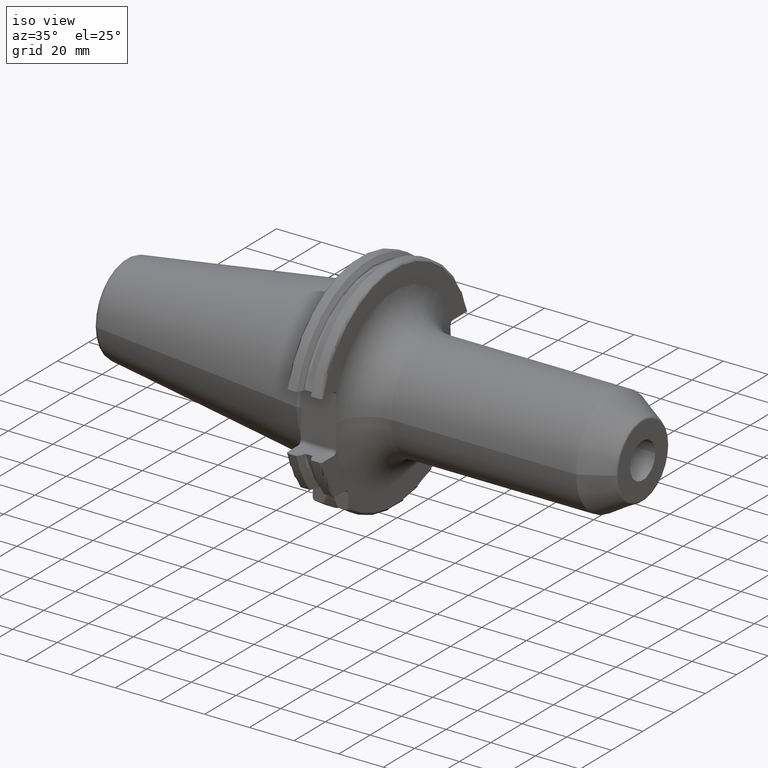
[diagram: clean part render]
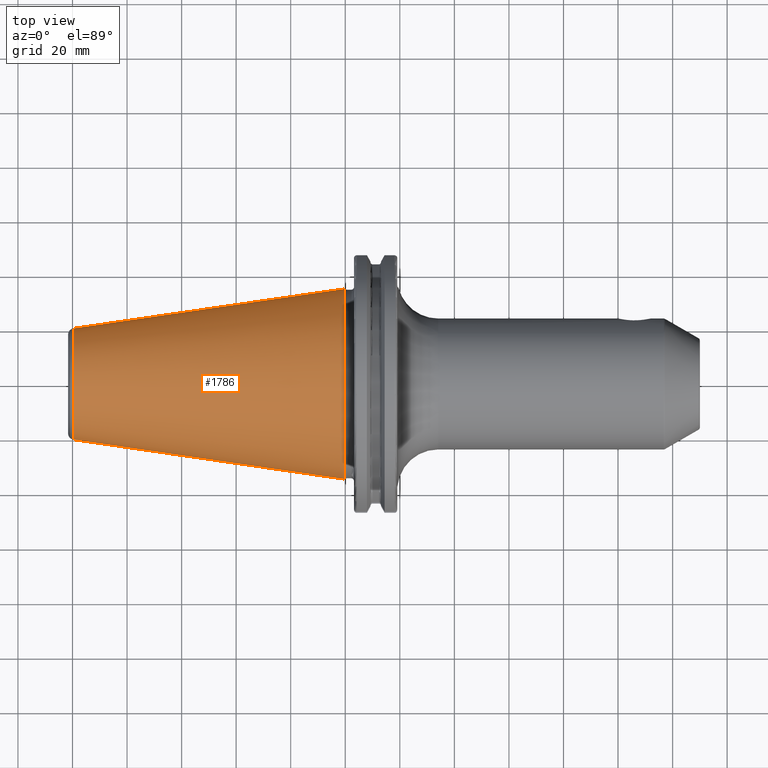
[diagram: tour spotlight — one face highlighted and labeled with its STEP entity id]
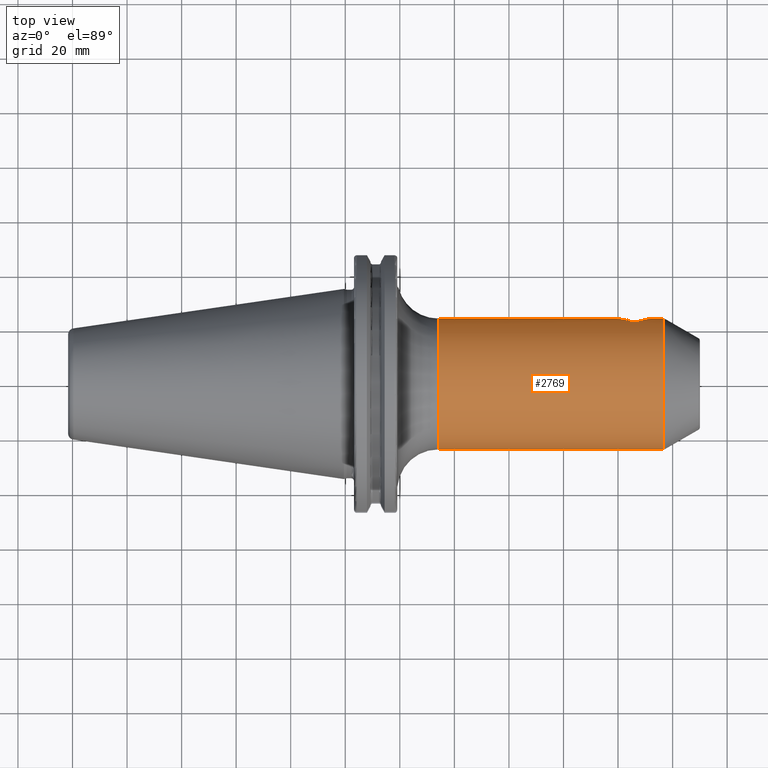
[diagram: tour spotlight — one face highlighted and labeled with its STEP entity id]
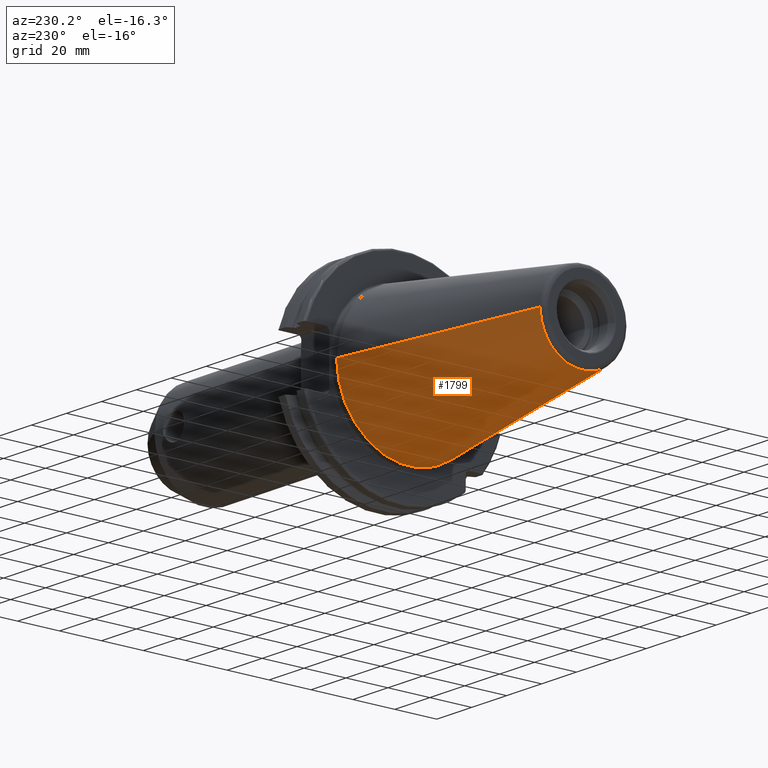
[diagram: tour spotlight — one face highlighted and labeled with its STEP entity id]
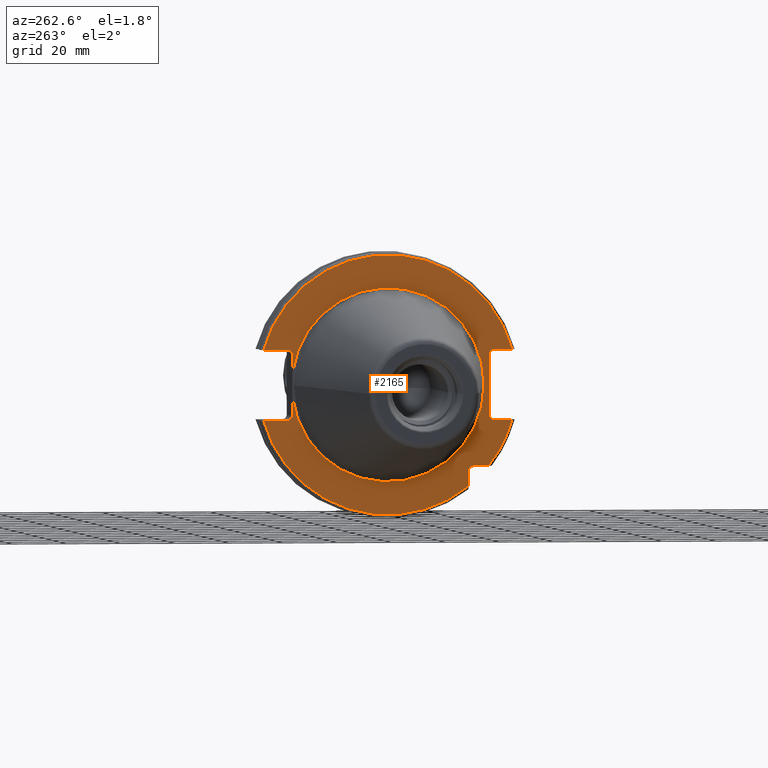
[diagram: tour spotlight — one face highlighted and labeled with its STEP entity id]
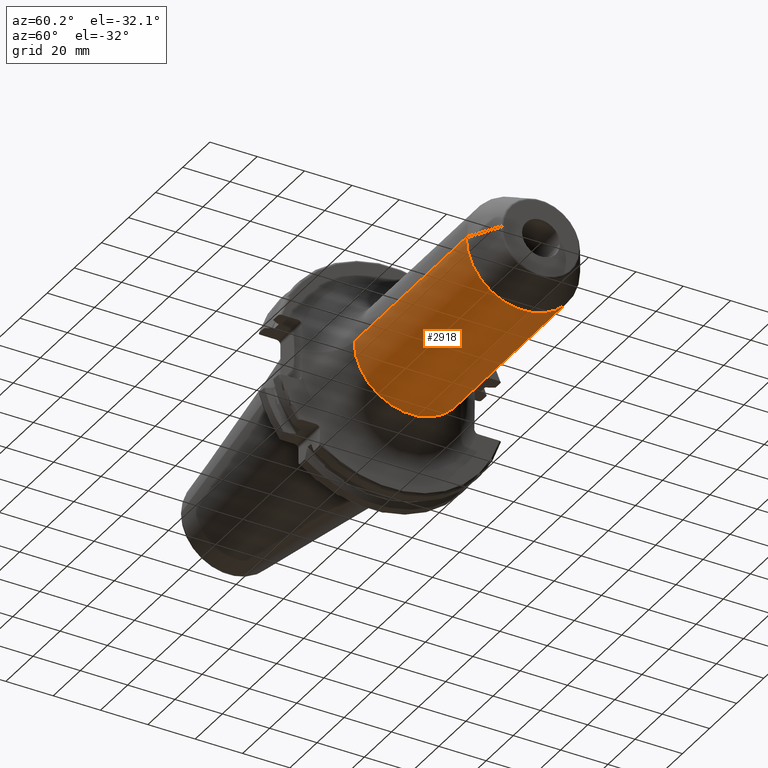
[diagram: tour spotlight — one face highlighted and labeled with its STEP entity id]
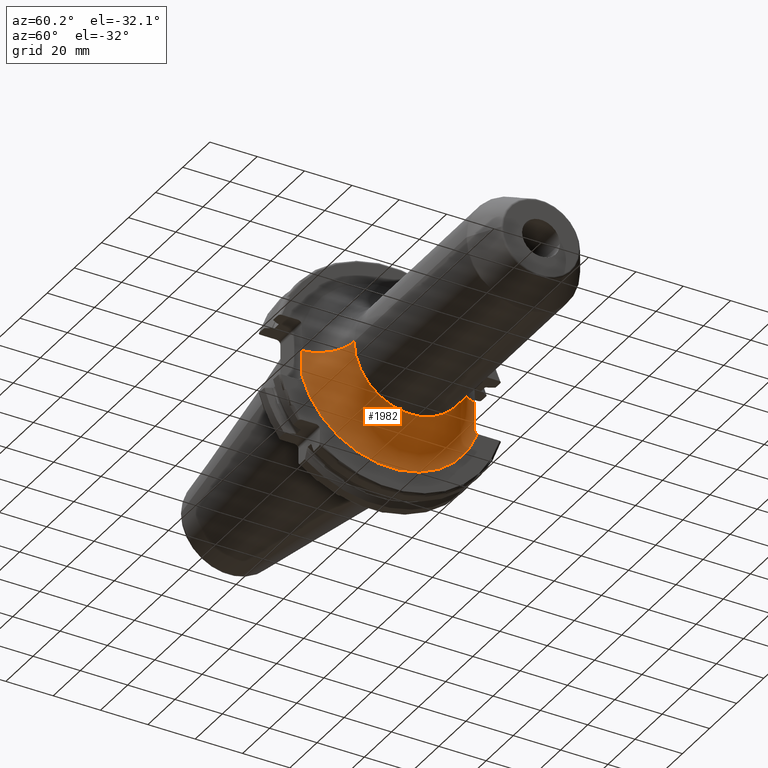
[diagram: tour spotlight — one face highlighted and labeled with its STEP entity id]
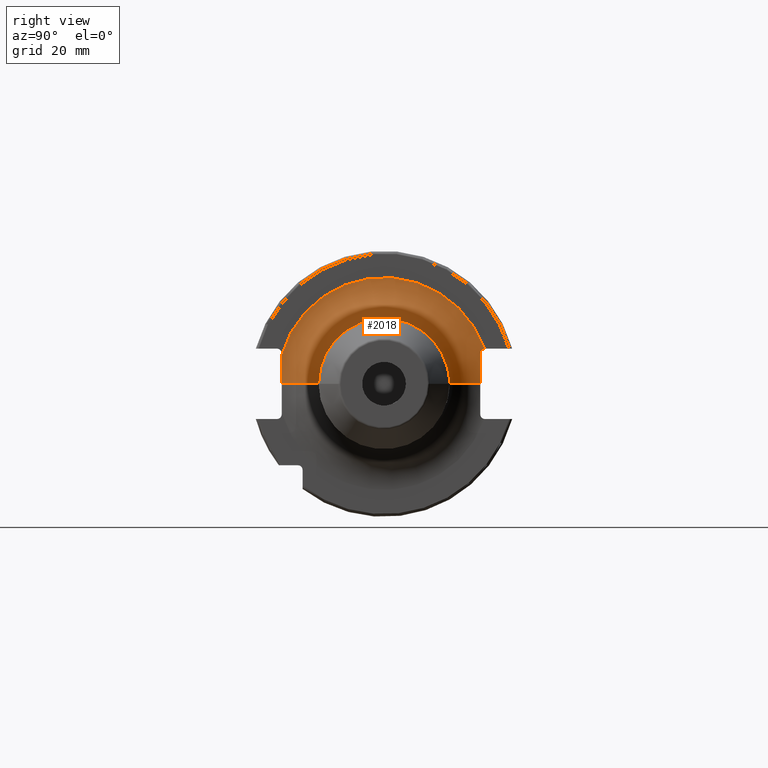
[diagram: tour spotlight — one face highlighted and labeled with its STEP entity id]
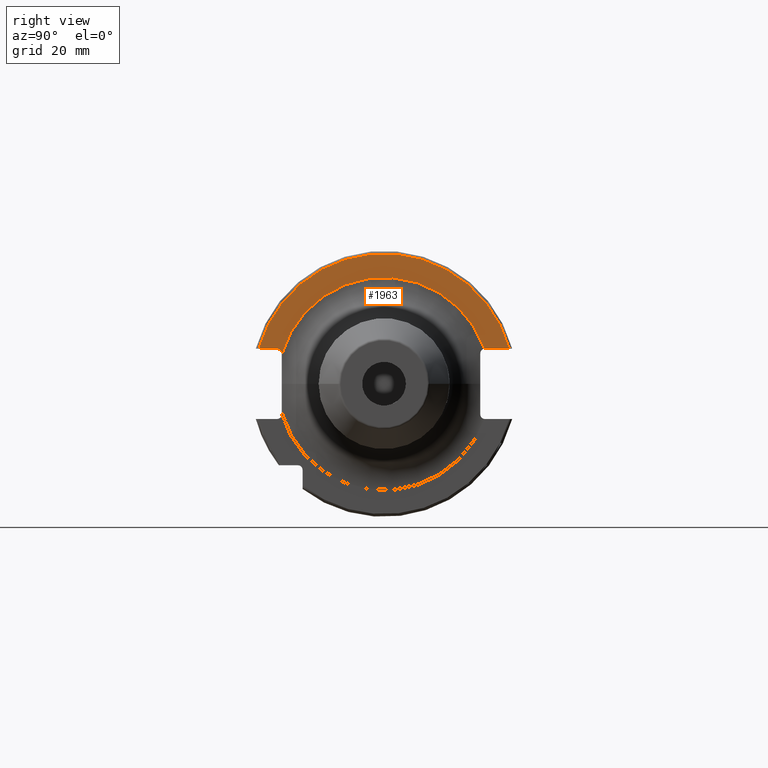
[diagram: tour spotlight — one face highlighted and labeled with its STEP entity id]
A machine part: a face-by-face anatomy tour. The part has 104 B-rep faces; the first image is the clean iso view, then the 8 largest visible faces are spotlighted one at a time (largest first), each with its STEP entity span.

Face 1 — top view, entity #1786. In plain terms, the highlighted conical surface has half-angle 8.298 deg.
Definition (entity closure, byte-faithful):
#37=CARTESIAN_POINT('',(-9.967471700563E1,0.E0,0.E0));
#38=DIRECTION('',(1.E0,0.E0,0.E0));
#39=DIRECTION('',(0.E0,1.E0,0.E0));
#40=AXIS2_PLACEMENT_3D('',#37,#38,#39);
#42=CARTESIAN_POINT('',(-4.896823332305E-1,0.E0,0.E0));
#43=DIRECTION('',(1.E0,0.E0,0.E0));
#44=DIRECTION('',(0.E0,1.E0,0.E0));
#45=AXIS2_PLACEMENT_3D('',#42,#43,#44);
#47=DIRECTION('',(-9.895312636440E-1,-1.443186691705E-1,0.E0));
#48=VECTOR('',#47,1.002343617797E2);
#49=CARTESIAN_POINT('',(-4.896823332305E-1,3.485358204157E1,0.E0));
#50=LINE('',#49,#48);
#51=DIRECTION('',(-9.895312636440E-1,1.443186691705E-1,0.E0));
#52=VECTOR('',#51,1.002343617797E2);
#53=CARTESIAN_POINT('',(-4.896823332305E-1,-3.485358204157E1,0.E0));
#54=LINE('',#53,#52);
#1450=CARTESIAN_POINT('',(-9.967471700563E1,2.038789234437E1,0.E0));
#1452=VERTEX_POINT('',#1450);
#1454=CARTESIAN_POINT('',(-9.967471700563E1,-2.038789234437E1,0.E0));
#1456=VERTEX_POINT('',#1454);
#1518=CARTESIAN_POINT('',(-4.896823332305E-1,3.485358204157E1,0.E0));
#1519=VERTEX_POINT('',#1518);
#1520=CARTESIAN_POINT('',(-4.896823332305E-1,-3.485358204157E1,0.E0));
#1521=VERTEX_POINT('',#1520);
#1772=CARTESIAN_POINT('',(-5.008219966943E1,0.E0,0.E0));
#1773=DIRECTION('',(1.E0,0.E0,0.E0));
#1774=DIRECTION('',(0.E0,-1.E0,0.E0));
#1775=AXIS2_PLACEMENT_3D('',#1772,#1773,#1774);
#1776=CONICAL_SURFACE('',#1775,2.762073719297E1,8.297826828206E0);
#1778=ORIENTED_EDGE('',*,*,#1777,.F.);
#1780=ORIENTED_EDGE('',*,*,#1779,.T.);
#1782=ORIENTED_EDGE('',*,*,#1781,.T.);
#1783=ORIENTED_EDGE('',*,*,#1765,.F.);
#1784=EDGE_LOOP('',(#1778,#1780,#1782,#1783));
#1785=FACE_OUTER_BOUND('',#1784,.F.);
#1786=ADVANCED_FACE('',(#1785),#1776,.T.);
#41=CIRCLE('',#40,2.038789234437E1);
#46=CIRCLE('',#45,3.485358204157E1);
#1765=EDGE_CURVE('',#1452,#1456,#41,.T.);
#1777=EDGE_CURVE('',#1519,#1452,#50,.T.);
#1779=EDGE_CURVE('',#1519,#1521,#46,.T.);
#1781=EDGE_CURVE('',#1521,#1456,#54,.T.);

Face 2 — top view, entity #2769. In plain terms, the highlighted cylindrical surface (partial cylindrical patch) has radius 24 mm, axis along (1, 0, 0).
Definition (entity closure, byte-faithful):
#1014=CARTESIAN_POINT('',(1.12E2,2.4E1,0.E0));
#1015=CARTESIAN_POINT('',(1.12E2,2.4E1,3.107665244784E-1));
#1016=CARTESIAN_POINT('',(1.119524390507E2,2.398804168421E1,9.248444466552E-1));
#1017=CARTESIAN_POINT('',(1.117380044746E2,2.393533741824E1,1.834534947316E0));
#1018=CARTESIAN_POINT('',(1.113873206177E2,2.385307974813E1,2.694843619146E0));
#1019=CARTESIAN_POINT('',(1.109113891360E2,2.374935523311E1,3.487185526402E0));
#1020=CARTESIAN_POINT('',(1.103216821064E2,2.363349894687E1,4.196516246488E0));
#1021=CARTESIAN_POINT('',(1.096168701166E2,2.351373494676E1,4.818310044363E0));
#1022=CARTESIAN_POINT('',(1.088174958129E2,2.340318995681E1,5.325248583934E0));
#1023=CARTESIAN_POINT('',(1.079514682084E2,2.331398754331E1,5.700043923787E0));
#1024=CARTESIAN_POINT('',(1.070206825434E2,2.325363243958E1,5.939456050731E0));
#1025=CARTESIAN_POINT('',(1.060298947244E2,2.323069316191E1,6.027717324220E0));
#1026=CARTESIAN_POINT('',(1.050373375668E2,2.325110848669E1,5.949236574619E0));
#1027=CARTESIAN_POINT('',(1.041015002948E2,2.330952479342E1,5.718129254607E0));
#1028=CARTESIAN_POINT('',(1.032273036849E2,2.339772647907E1,5.349076907064E0));
#1029=CARTESIAN_POINT('',(1.024180750870E2,2.350827627406E1,4.844834121853E0));
#1030=CARTESIAN_POINT('',(1.017034743016E2,2.362883047151E1,4.222782491620E0));
#1031=CARTESIAN_POINT('',(1.011055038830E2,2.374581013730E1,3.511508478443E0));
#1032=CARTESIAN_POINT('',(1.006220432364E2,2.385093056739E1,2.714347762896E0));
#1033=CARTESIAN_POINT('',(1.002661554521E2,2.393432545639E1,1.848671773096E0));
#1034=CARTESIAN_POINT('',(1.000483251288E2,2.398784813030E1,9.322106172549E-1));
#1035=CARTESIAN_POINT('',(1.E2,2.4E1,3.133046053178E-1));
#1036=CARTESIAN_POINT('',(1.E2,2.4E1,0.E0));
#1038=CARTESIAN_POINT('',(1.167320508076E2,0.E0,0.E0));
#1039=DIRECTION('',(-1.E0,0.E0,0.E0));
#1040=DIRECTION('',(0.E0,-1.E0,0.E0));
#1041=AXIS2_PLACEMENT_3D('',#1038,#1039,#1040);
#1043=CARTESIAN_POINT('',(3.405E1,0.E0,0.E0));
#1044=DIRECTION('',(1.E0,0.E0,0.E0));
#1045=DIRECTION('',(0.E0,1.E0,0.E0));
#1046=AXIS2_PLACEMENT_3D('',#1043,#1044,#1045);
#1202=DIRECTION('',(-9.999999996911E-1,-1.697496184032E-9,2.485436165492E-5));
#1203=VECTOR('',#1202,6.595000002037E1);
#1204=CARTESIAN_POINT('',(1.E2,2.4E1,0.E0));
#1205=LINE('',#1204,#1203);
#1211=DIRECTION('',(-9.999999998035E-1,1.353980365219E-9,-1.982467948264E-5));
#1212=VECTOR('',#1211,8.268205082382E1);
#1213=CARTESIAN_POINT('',(1.167320508076E2,-2.4E1,4.909795810200E-12));
#1214=LINE('',#1213,#1212);
#1220=DIRECTION('',(-1.E0,0.E0,1.038030226070E-12));
#1221=VECTOR('',#1220,4.732050807569E0);
#1222=CARTESIAN_POINT('',(1.167320508076E2,2.4E1,-4.910538723947E-12));
#1223=LINE('',#1222,#1221);
#1666=CARTESIAN_POINT('',(1.12E2,2.4E1,0.E0));
#1668=VERTEX_POINT('',#1666);
#1670=CARTESIAN_POINT('',(1.E2,2.4E1,0.E0));
#1672=VERTEX_POINT('',#1670);
#1679=CARTESIAN_POINT('',(3.405E1,-2.4E1,0.E0));
#1680=CARTESIAN_POINT('',(3.405E1,2.4E1,0.E0));
#1681=VERTEX_POINT('',#1679);
#1682=VERTEX_POINT('',#1680);
#1687=CARTESIAN_POINT('',(1.167320508076E2,2.4E1,0.E0));
#1688=CARTESIAN_POINT('',(1.167320508076E2,-2.4E1,0.E0));
#1689=VERTEX_POINT('',#1687);
#1690=VERTEX_POINT('',#1688);
#2751=CARTESIAN_POINT('',(1.35025E1,0.E0,0.E0));
#2752=DIRECTION('',(1.E0,0.E0,0.E0));
#2753=DIRECTION('',(0.E0,-1.E0,0.E0));
#2754=AXIS2_PLACEMENT_3D('',#2751,#2752,#2753);
#2755=CYLINDRICAL_SURFACE('',#2754,2.4E1);
#2757=ORIENTED_EDGE('',*,*,#2756,.F.);
#2759=ORIENTED_EDGE('',*,*,#2758,.F.);
#2761=ORIENTED_EDGE('',*,*,#2760,.F.);
#2763=ORIENTED_EDGE('',*,*,#2762,.T.);
#2764=ORIENTED_EDGE('',*,*,#2012,.F.);
#2766=ORIENTED_EDGE('',*,*,#2765,.F.);
#2767=EDGE_LOOP('',(#2757,#2759,#2761,#2763,#2764,#2766));
#2768=FACE_OUTER_BOUND('',#2767,.F.);
#2769=ADVANCED_FACE('',(#2768),#2755,.T.);
#1037=B_SPLINE_CURVE_WITH_KNOTS('',3,(#1014,#1015,#1016,#1017,#1018,#1019,#1020,
#1021,#1022,#1023,#1024,#1025,#1026,#1027,#1028,#1029,#1030,#1031,#1032,#1033,
#1034,#1035,#1036),.UNSPECIFIED.,.F.,.F.,(4,1,1,1,1,1,1,1,1,1,1,1,1,1,1,1,1,1,1,
1,4),(0.E0,5.E-2,1.E-1,1.5E-1,2.E-1,2.5E-1,3.E-1,3.5E-1,4.E-1,4.5E-1,5.E-1,
5.5E-1,6.E-1,6.5E-1,7.E-1,7.5E-1,8.E-1,8.5E-1,9.E-1,9.5E-1,1.E0),.UNSPECIFIED.);
#1042=CIRCLE('',#1041,2.4E1);
#1047=CIRCLE('',#1046,2.4E1);
#2012=EDGE_CURVE('',#1682,#1681,#1047,.T.);
#2756=EDGE_CURVE('',#1668,#1672,#1037,.T.);
#2758=EDGE_CURVE('',#1689,#1668,#1223,.T.);
#2760=EDGE_CURVE('',#1690,#1689,#1042,.T.);
#2762=EDGE_CURVE('',#1690,#1681,#1214,.T.);
#2765=EDGE_CURVE('',#1672,#1682,#1205,.T.);

Face 3 — auxiliary view, entity #1799. In plain terms, the highlighted conical surface has half-angle 8.298 deg.
Definition (entity closure, byte-faithful):
#32=CARTESIAN_POINT('',(-9.967471700563E1,0.E0,0.E0));
#33=DIRECTION('',(-1.E0,0.E0,0.E0));
#34=DIRECTION('',(0.E0,1.E0,0.E0));
#35=AXIS2_PLACEMENT_3D('',#32,#33,#34);
#47=DIRECTION('',(-9.895312636440E-1,-1.443186691705E-1,0.E0));
#48=VECTOR('',#47,1.002343617797E2);
#49=CARTESIAN_POINT('',(-4.896823332305E-1,3.485358204157E1,0.E0));
#50=LINE('',#49,#48);
#51=DIRECTION('',(-9.895312636440E-1,1.443186691705E-1,0.E0));
#52=VECTOR('',#51,1.002343617797E2);
#53=CARTESIAN_POINT('',(-4.896823332305E-1,-3.485358204157E1,0.E0));
#54=LINE('',#53,#52);
#55=CARTESIAN_POINT('',(-4.896823332305E-1,0.E0,0.E0));
#56=DIRECTION('',(-1.E0,0.E0,0.E0));
#57=DIRECTION('',(0.E0,1.E0,0.E0));
#58=AXIS2_PLACEMENT_3D('',#55,#56,#57);
#1450=CARTESIAN_POINT('',(-9.967471700563E1,2.038789234437E1,0.E0));
#1452=VERTEX_POINT('',#1450);
#1454=CARTESIAN_POINT('',(-9.967471700563E1,-2.038789234437E1,0.E0));
#1456=VERTEX_POINT('',#1454);
#1518=CARTESIAN_POINT('',(-4.896823332305E-1,3.485358204157E1,0.E0));
#1519=VERTEX_POINT('',#1518);
#1520=CARTESIAN_POINT('',(-4.896823332305E-1,-3.485358204157E1,0.E0));
#1521=VERTEX_POINT('',#1520);
#1787=CARTESIAN_POINT('',(-5.008219966943E1,0.E0,0.E0));
#1788=DIRECTION('',(1.E0,0.E0,0.E0));
#1789=DIRECTION('',(0.E0,-1.E0,0.E0));
#1790=AXIS2_PLACEMENT_3D('',#1787,#1788,#1789);
#1791=CONICAL_SURFACE('',#1790,2.762073719297E1,8.297826828206E0);
#1792=ORIENTED_EDGE('',*,*,#1777,.T.);
#1793=ORIENTED_EDGE('',*,*,#1754,.T.);
#1794=ORIENTED_EDGE('',*,*,#1781,.F.);
#1796=ORIENTED_EDGE('',*,*,#1795,.F.);
#1797=EDGE_LOOP('',(#1792,#1793,#1794,#1796));
#1798=FACE_OUTER_BOUND('',#1797,.F.);
#1799=ADVANCED_FACE('',(#1798),#1791,.T.);
#36=CIRCLE('',#35,2.038789234437E1);
#59=CIRCLE('',#58,3.485358204157E1);
#1754=EDGE_CURVE('',#1452,#1456,#36,.T.);
#1777=EDGE_CURVE('',#1519,#1452,#50,.T.);
#1781=EDGE_CURVE('',#1521,#1456,#54,.T.);
#1795=EDGE_CURVE('',#1519,#1521,#59,.T.);

Face 4 — auxiliary view, entity #2165. In plain terms, the highlighted planar face has unit normal (1, 0, 0).
Definition (entity closure, byte-faithful):
#105=CARTESIAN_POINT('',(3.2E0,3.53E1,-4.414818795828E0));
#117=CARTESIAN_POINT('',(3.2E0,0.E0,0.E0));
#118=DIRECTION('',(-1.E0,0.E0,0.E0));
#119=DIRECTION('',(0.E0,9.922698524245E-1,-1.240989120402E-1));
#120=AXIS2_PLACEMENT_3D('',#117,#118,#119);
#131=CARTESIAN_POINT('',(3.2E0,3.705E1,-1.115E1));
#132=DIRECTION('',(1.E0,0.E0,0.E0));
#133=DIRECTION('',(0.E0,-1.E0,0.E0));
#134=AXIS2_PLACEMENT_3D('',#131,#132,#133);
#257=CARTESIAN_POINT('',(3.2E0,3.705E1,1.115E1));
#258=DIRECTION('',(1.E0,0.E0,0.E0));
#259=DIRECTION('',(0.E0,0.E0,1.E0));
#260=AXIS2_PLACEMENT_3D('',#257,#258,#259);
#302=CARTESIAN_POINT('',(3.2E0,-3.925E1,1.115E1));
#303=DIRECTION('',(1.E0,0.E0,0.E0));
#304=DIRECTION('',(0.E0,1.E0,0.E0));
#305=AXIS2_PLACEMENT_3D('',#302,#303,#304);
#307=DIRECTION('',(0.E0,1.E0,0.E0));
#308=VECTOR('',#307,6.711493733886E0);
#309=CARTESIAN_POINT('',(3.2E0,-4.596149373389E1,1.29E1));
#310=LINE('',#309,#308);
#311=DIRECTION('',(0.E0,0.E0,1.E0));
#312=VECTOR('',#311,2.23E1);
#313=CARTESIAN_POINT('',(3.2E0,-3.75E1,-1.115E1));
#314=LINE('',#313,#312);
#315=DIRECTION('',(0.E0,1.E0,0.E0));
#316=VECTOR('',#315,6.711493733886E0);
#317=CARTESIAN_POINT('',(3.2E0,-4.596149373389E1,-1.29E1));
#318=LINE('',#317,#316);
#319=CARTESIAN_POINT('',(3.2E0,0.E0,0.E0));
#320=DIRECTION('',(-1.E0,0.E0,0.E0));
#321=DIRECTION('',(0.E0,-7.803888060170E-1,-6.252945797329E-1));
#322=AXIS2_PLACEMENT_3D('',#319,#320,#321);
#324=DIRECTION('',(0.E0,-1.E0,0.E0));
#325=VECTOR('',#324,5.653810627237E0);
#326=CARTESIAN_POINT('',(3.2E0,-3.16E1,-2.985E1));
#327=LINE('',#326,#325);
#328=DIRECTION('',(0.E0,0.E0,1.E0));
#329=VECTOR('',#328,5.653810627237E0);
#330=CARTESIAN_POINT('',(3.2E0,-2.985E1,-3.725381062724E1));
#331=LINE('',#330,#329);
#332=CARTESIAN_POINT('',(3.2E0,0.E0,0.E0));
#333=DIRECTION('',(-1.E0,0.E0,0.E0));
#334=DIRECTION('',(0.E0,9.627964123359E-1,-2.702278083268E-1));
#335=AXIS2_PLACEMENT_3D('',#332,#333,#334);
#337=DIRECTION('',(0.E0,-1.E0,0.E0));
#338=VECTOR('',#337,8.911493733886E0);
#339=CARTESIAN_POINT('',(3.2E0,4.596149373389E1,-1.29E1));
#340=LINE('',#339,#338);
#341=DIRECTION('',(0.E0,0.E0,-1.E0));
#342=VECTOR('',#341,6.735181204172E0);
#343=CARTESIAN_POINT('',(3.2E0,3.53E1,-4.414818795828E0));
#344=LINE('',#343,#342);
#345=DIRECTION('',(0.E0,0.E0,-1.E0));
#346=VECTOR('',#345,6.735181204172E0);
#347=CARTESIAN_POINT('',(3.2E0,3.53E1,1.115E1));
#348=LINE('',#347,#346);
#349=DIRECTION('',(0.E0,-1.E0,0.E0));
#350=VECTOR('',#349,8.911493733886E0);
#351=CARTESIAN_POINT('',(3.2E0,4.596149373389E1,1.29E1));
#352=LINE('',#351,#350);
#353=CARTESIAN_POINT('',(3.2E0,0.E0,0.E0));
#354=DIRECTION('',(1.E0,0.E0,0.E0));
#355=DIRECTION('',(0.E0,9.627964123359E-1,2.702278083268E-1));
#356=AXIS2_PLACEMENT_3D('',#353,#354,#355);
#363=CARTESIAN_POINT('',(3.2E0,-3.925E1,-1.115E1));
#364=DIRECTION('',(1.E0,0.E0,0.E0));
#365=DIRECTION('',(0.E0,0.E0,-1.E0));
#366=AXIS2_PLACEMENT_3D('',#363,#364,#365);
#429=CARTESIAN_POINT('',(3.2E0,4.596149373389E1,-1.29E1));
#464=CARTESIAN_POINT('',(3.2E0,-4.596149373389E1,-1.29E1));
#471=CARTESIAN_POINT('',(3.2E0,-3.725381062724E1,-2.985E1));
#491=CARTESIAN_POINT('',(3.2E0,-3.16E1,-3.16E1));
#492=DIRECTION('',(1.E0,0.E0,0.E0));
#493=DIRECTION('',(0.E0,1.E0,0.E0));
#494=AXIS2_PLACEMENT_3D('',#491,#492,#493);
#808=CARTESIAN_POINT('',(3.2E0,4.596149373389E1,1.29E1));
#815=CARTESIAN_POINT('',(3.2E0,-4.596149373389E1,1.29E1));
#998=CARTESIAN_POINT('',(3.2E0,3.53E1,4.414818795828E0));
#1009=CARTESIAN_POINT('',(3.2E0,0.E0,0.E0));
#1010=DIRECTION('',(1.E0,0.E0,0.E0));
#1011=DIRECTION('',(0.E0,9.922698524245E-1,1.240989120402E-1));
#1012=AXIS2_PLACEMENT_3D('',#1009,#1010,#1011);
#1462=CARTESIAN_POINT('',(3.2E0,-3.5575E1,0.E0));
#1464=VERTEX_POINT('',#1462);
#1588=VERTEX_POINT('',#998);
#1590=VERTEX_POINT('',#105);
#1593=VERTEX_POINT('',#808);
#1594=VERTEX_POINT('',#815);
#1597=VERTEX_POINT('',#429);
#1598=VERTEX_POINT('',#464);
#1621=CARTESIAN_POINT('',(3.2E0,-2.985E1,-3.725381062724E1));
#1622=VERTEX_POINT('',#1621);
#1624=CARTESIAN_POINT('',(3.2E0,-3.75E1,-1.115E1));
#1626=VERTEX_POINT('',#1624);
#1628=CARTESIAN_POINT('',(3.2E0,-3.925E1,-1.29E1));
#1630=VERTEX_POINT('',#1628);
#1632=CARTESIAN_POINT('',(3.2E0,-3.925E1,1.29E1));
#1634=VERTEX_POINT('',#1632);
#1636=CARTESIAN_POINT('',(3.2E0,-3.75E1,1.115E1));
#1638=VERTEX_POINT('',#1636);
#1640=CARTESIAN_POINT('',(3.2E0,3.705E1,1.29E1));
#1642=VERTEX_POINT('',#1640);
#1644=CARTESIAN_POINT('',(3.2E0,3.705E1,-1.29E1));
#1646=VERTEX_POINT('',#1644);
#1647=CARTESIAN_POINT('',(3.2E0,3.53E1,1.115E1));
#1648=VERTEX_POINT('',#1647);
#1649=CARTESIAN_POINT('',(3.2E0,3.53E1,-1.115E1));
#1650=VERTEX_POINT('',#1649);
#1655=CARTESIAN_POINT('',(3.2E0,-2.985E1,-3.16E1));
#1656=CARTESIAN_POINT('',(3.2E0,-3.16E1,-2.985E1));
#1657=VERTEX_POINT('',#1655);
#1658=VERTEX_POINT('',#1656);
#1725=VERTEX_POINT('',#471);
#2129=CARTESIAN_POINT('',(3.2E0,0.E0,0.E0));
#2130=DIRECTION('',(1.E0,0.E0,0.E0));
#2131=DIRECTION('',(0.E0,-1.E0,0.E0));
#2132=AXIS2_PLACEMENT_3D('',#2129,#2130,#2131);
#2133=PLANE('',#2132);
#2134=ORIENTED_EDGE('',*,*,#2089,.T.);
#2135=ORIENTED_EDGE('',*,*,#2124,.F.);
#2136=ORIENTED_EDGE('',*,*,#1995,.F.);
#2138=ORIENTED_EDGE('',*,*,#2137,.F.);
#2140=ORIENTED_EDGE('',*,*,#2139,.F.);
#2142=ORIENTED_EDGE('',*,*,#2141,.F.);
#2144=ORIENTED_EDGE('',*,*,#2143,.F.);
#2146=ORIENTED_EDGE('',*,*,#2145,.F.);
#2148=ORIENTED_EDGE('',*,*,#2147,.F.);
#2150=ORIENTED_EDGE('',*,*,#2149,.F.);
#2152=ORIENTED_EDGE('',*,*,#2151,.T.);
#2153=ORIENTED_EDGE('',*,*,#1906,.F.);
#2154=ORIENTED_EDGE('',*,*,#1891,.F.);
#2155=ORIENTED_EDGE('',*,*,#1868,.T.);
#2157=ORIENTED_EDGE('',*,*,#2156,.F.);
#2158=ORIENTED_EDGE('',*,*,#1886,.F.);
#2159=ORIENTED_EDGE('',*,*,#2029,.F.);
#2160=ORIENTED_EDGE('',*,*,#2063,.F.);
#2162=ORIENTED_EDGE('',*,*,#2161,.T.);
#2163=EDGE_LOOP('',(#2134,#2135,#2136,#2138,#2140,#2142,#2144,#2146,#2148,#2150,
#2152,#2153,#2154,#2155,#2157,#2158,#2159,#2160,#2162));
#2164=FACE_OUTER_BOUND('',#2163,.F.);
#2165=ADVANCED_FACE('',(#2164),#2133,.F.);
#121=CIRCLE('',#120,3.5575E1);
#135=CIRCLE('',#134,1.75E0);
#261=CIRCLE('',#260,1.75E0);
#306=CIRCLE('',#305,1.75E0);
#323=CIRCLE('',#322,4.77375E1);
#336=CIRCLE('',#335,4.77375E1);
#357=CIRCLE('',#356,4.77375E1);
#367=CIRCLE('',#366,1.75E0);
#495=CIRCLE('',#494,1.75E0);
#1013=CIRCLE('',#1012,3.5575E1);
#1868=EDGE_CURVE('',#1590,#1464,#121,.T.);
#1886=EDGE_CURVE('',#1648,#1588,#348,.T.);
#1891=EDGE_CURVE('',#1590,#1650,#344,.T.);
#1906=EDGE_CURVE('',#1650,#1646,#135,.T.);
#1995=EDGE_CURVE('',#1626,#1638,#314,.T.);
#2029=EDGE_CURVE('',#1642,#1648,#261,.T.);
#2063=EDGE_CURVE('',#1593,#1642,#352,.T.);
#2089=EDGE_CURVE('',#1594,#1634,#310,.T.);
#2124=EDGE_CURVE('',#1638,#1634,#306,.T.);
#2137=EDGE_CURVE('',#1630,#1626,#367,.T.);
#2139=EDGE_CURVE('',#1598,#1630,#318,.T.);
#2141=EDGE_CURVE('',#1725,#1598,#323,.T.);
#2143=EDGE_CURVE('',#1658,#1725,#327,.T.);
#2145=EDGE_CURVE('',#1657,#1658,#495,.T.);
#2147=EDGE_CURVE('',#1622,#1657,#331,.T.);
#2149=EDGE_CURVE('',#1597,#1622,#336,.T.);
#2151=EDGE_CURVE('',#1597,#1646,#340,.T.);
#2156=EDGE_CURVE('',#1588,#1464,#1013,.T.);
#2161=EDGE_CURVE('',#1593,#1594,#357,.T.);

Face 5 — auxiliary view, entity #2918. In plain terms, the highlighted cylindrical surface (partial cylindrical patch) has radius 24 mm, axis along (1, 0, 0).
Definition (entity closure, byte-faithful):
#1178=CARTESIAN_POINT('',(1.E2,2.4E1,0.E0));
#1179=CARTESIAN_POINT('',(1.E2,2.4E1,-3.104221699493E-1));
#1180=CARTESIAN_POINT('',(1.000474589876E2,2.398806754006E1,
-9.238599184697E-1));
#1181=CARTESIAN_POINT('',(1.002614472636E2,2.393547067972E1,-1.832680027886E0));
#1182=CARTESIAN_POINT('',(1.006115065907E2,2.385334910001E1,-2.692389651151E0));
#1183=CARTESIAN_POINT('',(1.010864266556E2,2.374981516105E1,-3.484002101402E0));
#1184=CARTESIAN_POINT('',(1.016748373096E2,2.363414913713E1,-4.192830136926E0));
#1185=CARTESIAN_POINT('',(1.023780022950E2,2.351454159285E1,-4.814373051576E0));
#1186=CARTESIAN_POINT('',(1.031759028833E2,2.340400129208E1,-5.321702008537E0));
#1187=CARTESIAN_POINT('',(1.040408770022E2,2.331463939970E1,-5.697398823349E0));
#1188=CARTESIAN_POINT('',(1.049713159454E2,2.325398447360E1,-5.938091722485E0));
#1189=CARTESIAN_POINT('',(1.059625839053E2,2.323069127969E1,-6.027724531579E0));
#1190=CARTESIAN_POINT('',(1.069563152425E2,2.325082766100E1,-5.950325439996E0));
#1191=CARTESIAN_POINT('',(1.078934724305E2,2.330910025744E1,-5.719850394909E0));
#1192=CARTESIAN_POINT('',(1.087687139381E2,2.339724352961E1,-5.351180394185E0));
#1193=CARTESIAN_POINT('',(1.095788462977E2,2.350779794895E1,-4.847150170071E0));
#1194=CARTESIAN_POINT('',(1.102942873661E2,2.362841636613E1,-4.225104405472E0));
#1195=CARTESIAN_POINT('',(1.108929966952E2,2.374549611544E1,-3.513651219124E0));
#1196=CARTESIAN_POINT('',(1.113770883492E2,2.385073159101E1,-2.716141496831E0));
#1197=CARTESIAN_POINT('',(1.117334721691E2,2.393423475666E1,-1.849943448490E0));
#1198=CARTESIAN_POINT('',(1.119516099104E2,2.398783169232E1,
-9.328464695382E-1));
#1199=CARTESIAN_POINT('',(1.12E2,2.4E1,-3.135199927511E-1));
#1200=CARTESIAN_POINT('',(1.12E2,2.4E1,0.E0));
#1202=DIRECTION('',(-9.999999996911E-1,-1.697496184032E-9,2.485436165492E-5));
#1203=VECTOR('',#1202,6.595000002037E1);
#1204=CARTESIAN_POINT('',(1.E2,2.4E1,0.E0));
#1205=LINE('',#1204,#1203);
#1206=CARTESIAN_POINT('',(3.405E1,0.E0,0.E0));
#1207=DIRECTION('',(1.E0,0.E0,0.E0));
#1208=DIRECTION('',(0.E0,-1.E0,0.E0));
#1209=AXIS2_PLACEMENT_3D('',#1206,#1207,#1208);
#1211=DIRECTION('',(-9.999999998035E-1,1.353980365219E-9,-1.982467948264E-5));
#1212=VECTOR('',#1211,8.268205082382E1);
#1213=CARTESIAN_POINT('',(1.167320508076E2,-2.4E1,4.909795810200E-12));
#1214=LINE('',#1213,#1212);
#1215=CARTESIAN_POINT('',(1.167320508076E2,0.E0,0.E0));
#1216=DIRECTION('',(-1.E0,0.E0,0.E0));
#1217=DIRECTION('',(0.E0,1.E0,0.E0));
#1218=AXIS2_PLACEMENT_3D('',#1215,#1216,#1217);
#1220=DIRECTION('',(-1.E0,0.E0,1.038030226070E-12));
#1221=VECTOR('',#1220,4.732050807569E0);
#1222=CARTESIAN_POINT('',(1.167320508076E2,2.4E1,-4.910538723947E-12));
#1223=LINE('',#1222,#1221);
#1666=CARTESIAN_POINT('',(1.12E2,2.4E1,0.E0));
#1668=VERTEX_POINT('',#1666);
#1670=CARTESIAN_POINT('',(1.E2,2.4E1,0.E0));
#1672=VERTEX_POINT('',#1670);
#1679=CARTESIAN_POINT('',(3.405E1,-2.4E1,0.E0));
#1680=CARTESIAN_POINT('',(3.405E1,2.4E1,0.E0));
#1681=VERTEX_POINT('',#1679);
#1682=VERTEX_POINT('',#1680);
#1687=CARTESIAN_POINT('',(1.167320508076E2,2.4E1,0.E0));
#1688=CARTESIAN_POINT('',(1.167320508076E2,-2.4E1,0.E0));
#1689=VERTEX_POINT('',#1687);
#1690=VERTEX_POINT('',#1688);
#2905=CARTESIAN_POINT('',(1.35025E1,0.E0,0.E0));
#2906=DIRECTION('',(1.E0,0.E0,0.E0));
#2907=DIRECTION('',(0.E0,-1.E0,0.E0));
#2908=AXIS2_PLACEMENT_3D('',#2905,#2906,#2907);
#2909=CYLINDRICAL_SURFACE('',#2908,2.4E1);
#2910=ORIENTED_EDGE('',*,*,#2794,.F.);
#2911=ORIENTED_EDGE('',*,*,#2765,.T.);
#2912=ORIENTED_EDGE('',*,*,#1974,.F.);
#2913=ORIENTED_EDGE('',*,*,#2762,.F.);
#2914=ORIENTED_EDGE('',*,*,#2895,.F.);
#2915=ORIENTED_EDGE('',*,*,#2758,.T.);
#2916=EDGE_LOOP('',(#2910,#2911,#2912,#2913,#2914,#2915));
#2917=FACE_OUTER_BOUND('',#2916,.F.);
#2918=ADVANCED_FACE('',(#2917),#2909,.T.);
#1201=B_SPLINE_CURVE_WITH_KNOTS('',3,(#1178,#1179,#1180,#1181,#1182,#1183,#1184,
#1185,#1186,#1187,#1188,#1189,#1190,#1191,#1192,#1193,#1194,#1195,#1196,#1197,
#1198,#1199,#1200),.UNSPECIFIED.,.F.,.F.,(4,1,1,1,1,1,1,1,1,1,1,1,1,1,1,1,1,1,1,
1,4),(0.E0,5.E-2,1.E-1,1.5E-1,2.E-1,2.5E-1,3.E-1,3.5E-1,4.E-1,4.5E-1,5.E-1,
5.5E-1,6.E-1,6.5E-1,7.E-1,7.5E-1,8.E-1,8.5E-1,9.E-1,9.5E-1,1.E0),.UNSPECIFIED.);
#1210=CIRCLE('',#1209,2.4E1);
#1219=CIRCLE('',#1218,2.4E1);
#1974=EDGE_CURVE('',#1681,#1682,#1210,.T.);
#2758=EDGE_CURVE('',#1689,#1668,#1223,.T.);
#2762=EDGE_CURVE('',#1690,#1681,#1214,.T.);
#2765=EDGE_CURVE('',#1672,#1682,#1205,.T.);
#2794=EDGE_CURVE('',#1672,#1668,#1201,.T.);
#2895=EDGE_CURVE('',#1689,#1690,#1219,.T.);

Face 6 — auxiliary view, entity #1982. In plain terms, the highlighted toroidal blend (fillet) surface has major radius 39 mm and minor (blend) radius 15 mm.
Definition (entity closure, byte-faithful):
#136=CARTESIAN_POINT('',(1.905E1,0.E0,0.E0));
#137=DIRECTION('',(1.E0,0.E0,0.E0));
#138=DIRECTION('',(0.E0,-9.615379445209E-1,-2.746721340919E-1));
#139=AXIS2_PLACEMENT_3D('',#136,#137,#138);
#178=CARTESIAN_POINT('',(1.912518840862E1,-3.75E1,-5.094316480315E-3));
#179=CARTESIAN_POINT('',(1.912517212636E1,-3.75E1,-1.197647662443E0));
#180=CARTESIAN_POINT('',(1.911303187922E1,-3.749999798409E1,-3.580944599134E0));
#181=CARTESIAN_POINT('',(1.907076769775E1,-3.750000705568E1,-7.159068959778E0));
#182=CARTESIAN_POINT('',(1.905E1,-3.749998488070E1,-9.529428937360E0));
#183=CARTESIAN_POINT('',(1.905E1,-3.749998488070E1,-1.071222101944E1));
#185=CARTESIAN_POINT('',(3.405E1,-3.899999964013E1,-5.298089090639E-3));
#186=DIRECTION('',(0.E0,1.358484382215E-4,-9.999999907726E-1));
#187=DIRECTION('',(-9.949874394251E-1,9.999997600876E-2,1.358484068833E-5));
#188=AXIS2_PLACEMENT_3D('',#185,#186,#187);
#190=CARTESIAN_POINT('',(1.918137640837E1,3.53E1,-1.115E1));
#191=CARTESIAN_POINT('',(1.923178844981E1,3.53E1,-9.893711041845E0));
#192=CARTESIAN_POINT('',(1.934547264020E1,3.53E1,-7.393396953411E0));
#193=CARTESIAN_POINT('',(1.948001097596E1,3.53E1,-3.684019479554E0));
#194=CARTESIAN_POINT('',(1.951353659301E1,3.53E1,-1.222070809502E0));
#195=CARTESIAN_POINT('',(1.951349414704E1,3.53E1,4.798122810643E-3));
#197=CARTESIAN_POINT('',(1.905E1,3.681052671951E1,-1.288349795001E1));
#198=CARTESIAN_POINT('',(1.905E1,3.669161609853E1,-1.286707109370E1));
#199=CARTESIAN_POINT('',(1.905281259090E1,3.645693510649E1,-1.280963919932E1));
#200=CARTESIAN_POINT('',(1.906579536254E1,3.613016240846E1,-1.265337165657E1));
#201=CARTESIAN_POINT('',(1.908660401465E1,3.583998409582E1,-1.243192573948E1));
#202=CARTESIAN_POINT('',(1.911298260153E1,3.559959207815E1,-1.215184371651E1));
#203=CARTESIAN_POINT('',(1.914037793078E1,3.542630942895E1,-1.183405145315E1));
#204=CARTESIAN_POINT('',(1.916447645561E1,3.532345197102E1,-1.149947617503E1));
#205=CARTESIAN_POINT('',(1.917671309240E1,3.53E1,-1.126621176605E1));
#206=CARTESIAN_POINT('',(1.918137640837E1,3.53E1,-1.115E1));
#227=CARTESIAN_POINT('',(1.951349414704E1,3.53E1,4.798122810643E-3));
#236=CARTESIAN_POINT('',(3.405E1,3.899999963973E1,5.301042149749E-3));
#237=DIRECTION('',(0.E0,-1.359241576859E-4,9.999999907623E-1));
#238=DIRECTION('',(-9.691003901972E-1,-2.466666426487E-1,-3.352795594094E-5));
#239=AXIS2_PLACEMENT_3D('',#236,#237,#238);
#246=CARTESIAN_POINT('',(1.912518840862E1,-3.75E1,-5.094316480315E-3));
#1206=CARTESIAN_POINT('',(3.405E1,0.E0,0.E0));
#1207=DIRECTION('',(1.E0,0.E0,0.E0));
#1208=DIRECTION('',(0.E0,-1.E0,0.E0));
#1209=AXIS2_PLACEMENT_3D('',#1206,#1207,#1208);
#1675=CARTESIAN_POINT('',(1.905E1,-3.749997983631E1,-1.071221322958E1));
#1676=CARTESIAN_POINT('',(1.905E1,3.681051948064E1,-1.288354204266E1));
#1677=VERTEX_POINT('',#1675);
#1678=VERTEX_POINT('',#1676);
#1679=CARTESIAN_POINT('',(3.405E1,-2.4E1,0.E0));
#1680=CARTESIAN_POINT('',(3.405E1,2.4E1,0.E0));
#1681=VERTEX_POINT('',#1679);
#1682=VERTEX_POINT('',#1680);
#1703=VERTEX_POINT('',#227);
#1705=VERTEX_POINT('',#190);
#1706=VERTEX_POINT('',#246);
#1964=CARTESIAN_POINT('',(3.405E1,0.E0,0.E0));
#1965=DIRECTION('',(1.E0,0.E0,0.E0));
#1966=DIRECTION('',(0.E0,-1.485959642860E-3,9.999988959614E-1));
#1967=AXIS2_PLACEMENT_3D('',#1964,#1965,#1966);
#1968=TOROIDAL_SURFACE('',#1967,3.9E1,1.5E1);
#1969=ORIENTED_EDGE('',*,*,#1918,.F.);
#1971=ORIENTED_EDGE('',*,*,#1970,.F.);
#1973=ORIENTED_EDGE('',*,*,#1972,.T.);
#1975=ORIENTED_EDGE('',*,*,#1974,.T.);
#1977=ORIENTED_EDGE('',*,*,#1976,.F.);
#1978=ORIENTED_EDGE('',*,*,#1880,.F.);
#1979=ORIENTED_EDGE('',*,*,#1903,.F.);
#1980=EDGE_LOOP('',(#1969,#1971,#1973,#1975,#1977,#1978,#1979));
#1981=FACE_OUTER_BOUND('',#1980,.F.);
#1982=ADVANCED_FACE('',(#1981),#1968,.F.);
#140=CIRCLE('',#139,3.9E1);
#184=B_SPLINE_CURVE_WITH_KNOTS('',3,(#178,#179,#180,#181,#182,#183),
.UNSPECIFIED.,.F.,.F.,(4,1,1,4),(0.E0,3.333333333333E-1,6.666666666667E-1,1.E0),
.UNSPECIFIED.);
#189=CIRCLE('',#188,1.5E1);
#196=B_SPLINE_CURVE_WITH_KNOTS('',3,(#190,#191,#192,#193,#194,#195),
.UNSPECIFIED.,.F.,.F.,(4,1,1,4),(0.E0,3.333333333333E-1,6.666666666667E-1,1.E0),
.UNSPECIFIED.);
#207=B_SPLINE_CURVE_WITH_KNOTS('',3,(#197,#198,#199,#200,#201,#202,#203,#204,
#205,#206),.UNSPECIFIED.,.F.,.F.,(4,1,1,1,1,1,1,4),(0.E0,1.428571428571E-1,
2.857142857143E-1,4.285714285714E-1,5.714285714286E-1,7.142857142857E-1,
8.571428571429E-1,1.E0),.UNSPECIFIED.);
#240=CIRCLE('',#239,1.5E1);
#1210=CIRCLE('',#1209,2.4E1);
#1880=EDGE_CURVE('',#1705,#1703,#196,.T.);
#1903=EDGE_CURVE('',#1678,#1705,#207,.T.);
#1918=EDGE_CURVE('',#1677,#1678,#140,.T.);
#1970=EDGE_CURVE('',#1706,#1677,#184,.T.);
#1972=EDGE_CURVE('',#1706,#1681,#189,.T.);
#1974=EDGE_CURVE('',#1681,#1682,#1210,.T.);
#1976=EDGE_CURVE('',#1703,#1682,#240,.T.);

Face 7 — right view, entity #2018. In plain terms, the highlighted toroidal blend (fillet) surface has major radius 39 mm and minor (blend) radius 15 mm.
Definition (entity closure, byte-faithful):
#161=CARTESIAN_POINT('',(1.905E1,0.E0,0.E0));
#162=DIRECTION('',(1.E0,0.E0,0.E0));
#163=DIRECTION('',(0.E0,9.438595341718E-1,3.303470595494E-1));
#164=AXIS2_PLACEMENT_3D('',#161,#162,#163);
#185=CARTESIAN_POINT('',(3.405E1,-3.899999964013E1,-5.298089090639E-3));
#186=DIRECTION('',(0.E0,1.358484382215E-4,-9.999999907726E-1));
#187=DIRECTION('',(-9.949874394251E-1,9.999997600876E-2,1.358484068833E-5));
#188=AXIS2_PLACEMENT_3D('',#185,#186,#187);
#216=CARTESIAN_POINT('',(1.918137640837E1,3.53E1,1.115E1));
#217=CARTESIAN_POINT('',(1.917671494499E1,3.53E1,1.126616559868E1));
#218=CARTESIAN_POINT('',(1.916448306714E1,3.532343312153E1,1.149936506376E1));
#219=CARTESIAN_POINT('',(1.914038851501E1,3.542625648776E1,1.183392156617E1));
#220=CARTESIAN_POINT('',(1.911298733341E1,3.559953511393E1,1.215179385381E1));
#221=CARTESIAN_POINT('',(1.908660386944E1,3.584003914816E1,1.243192871620E1));
#222=CARTESIAN_POINT('',(1.906582869627E1,3.612957748043E1,1.265301125466E1));
#223=CARTESIAN_POINT('',(1.905281085720E1,3.645682053949E1,1.280960854187E1));
#224=CARTESIAN_POINT('',(1.905E1,3.669155660961E1,1.286712673317E1));
#225=CARTESIAN_POINT('',(1.905E1,3.681051548351E1,1.288356025536E1));
#227=CARTESIAN_POINT('',(1.951349414704E1,3.53E1,4.798122810643E-3));
#228=CARTESIAN_POINT('',(1.951347280974E1,3.53E1,6.215368898776E-1));
#229=CARTESIAN_POINT('',(1.950500717658E1,3.53E1,1.887638009137E0));
#230=CARTESIAN_POINT('',(1.946601815670E1,3.53E1,3.842591144301E0));
#231=CARTESIAN_POINT('',(1.939821598225E1,3.53E1,5.979554142847E0));
#232=CARTESIAN_POINT('',(1.929823798374E1,3.53E1,8.416985606384E0));
#233=CARTESIAN_POINT('',(1.921913129347E1,3.53E1,1.020913262166E1));
#234=CARTESIAN_POINT('',(1.918137640837E1,3.53E1,1.115E1));
#236=CARTESIAN_POINT('',(3.405E1,3.899999963973E1,5.301042149749E-3));
#237=DIRECTION('',(0.E0,-1.359241576859E-4,9.999999907623E-1));
#238=DIRECTION('',(-9.691003901972E-1,-2.466666426487E-1,-3.352795594094E-5));
#239=AXIS2_PLACEMENT_3D('',#236,#237,#238);
#241=CARTESIAN_POINT('',(1.905E1,-3.749999313437E1,1.071227308265E1));
#242=CARTESIAN_POINT('',(1.905E1,-3.749999313437E1,9.527070664641E0));
#243=CARTESIAN_POINT('',(1.907084416901E1,-3.750000320396E1,7.152680525913E0));
#244=CARTESIAN_POINT('',(1.911311898158E1,-3.749999908458E1,3.572424648342E0));
#245=CARTESIAN_POINT('',(1.912520469628E1,-3.75E1,1.187853866845E0));
#246=CARTESIAN_POINT('',(1.912518840862E1,-3.75E1,-5.094316480315E-3));
#1043=CARTESIAN_POINT('',(3.405E1,0.E0,0.E0));
#1044=DIRECTION('',(1.E0,0.E0,0.E0));
#1045=DIRECTION('',(0.E0,1.E0,0.E0));
#1046=AXIS2_PLACEMENT_3D('',#1043,#1044,#1045);
#1679=CARTESIAN_POINT('',(3.405E1,-2.4E1,0.E0));
#1680=CARTESIAN_POINT('',(3.405E1,2.4E1,0.E0));
#1681=VERTEX_POINT('',#1679);
#1682=VERTEX_POINT('',#1680);
#1683=CARTESIAN_POINT('',(1.905E1,3.681052183270E1,1.288353532243E1));
#1684=CARTESIAN_POINT('',(1.905E1,-3.749991569209E1,1.071243777514E1));
#1685=VERTEX_POINT('',#1683);
#1686=VERTEX_POINT('',#1684);
#1703=VERTEX_POINT('',#227);
#1704=VERTEX_POINT('',#234);
#1706=VERTEX_POINT('',#246);
#2002=CARTESIAN_POINT('',(3.405E1,0.E0,0.E0));
#2003=DIRECTION('',(1.E0,0.E0,0.E0));
#2004=DIRECTION('',(0.E0,1.485959642860E-3,-9.999988959614E-1));
#2005=AXIS2_PLACEMENT_3D('',#2002,#2003,#2004);
#2006=TOROIDAL_SURFACE('',#2005,3.9E1,1.5E1);
#2007=ORIENTED_EDGE('',*,*,#1947,.F.);
#2009=ORIENTED_EDGE('',*,*,#2008,.F.);
#2010=ORIENTED_EDGE('',*,*,#1882,.F.);
#2011=ORIENTED_EDGE('',*,*,#1976,.T.);
#2013=ORIENTED_EDGE('',*,*,#2012,.T.);
#2014=ORIENTED_EDGE('',*,*,#1972,.F.);
#2015=ORIENTED_EDGE('',*,*,#1989,.F.);
#2016=EDGE_LOOP('',(#2007,#2009,#2010,#2011,#2013,#2014,#2015));
#2017=FACE_OUTER_BOUND('',#2016,.F.);
#2018=ADVANCED_FACE('',(#2017),#2006,.F.);
#165=CIRCLE('',#164,3.9E1);
#189=CIRCLE('',#188,1.5E1);
#226=B_SPLINE_CURVE_WITH_KNOTS('',3,(#216,#217,#218,#219,#220,#221,#222,#223,
#224,#225),.UNSPECIFIED.,.F.,.F.,(4,1,1,1,1,1,1,4),(0.E0,1.428571428571E-1,
2.857142857143E-1,4.285714285714E-1,5.714285714286E-1,7.142857142857E-1,
8.571428571429E-1,1.E0),.UNSPECIFIED.);
#235=B_SPLINE_CURVE_WITH_KNOTS('',3,(#227,#228,#229,#230,#231,#232,#233,#234),
.UNSPECIFIED.,.F.,.F.,(4,1,1,1,1,4),(0.E0,2.E-1,4.E-1,6.E-1,8.E-1,1.E0),
.UNSPECIFIED.);
#240=CIRCLE('',#239,1.5E1);
#247=B_SPLINE_CURVE_WITH_KNOTS('',3,(#241,#242,#243,#244,#245,#246),
.UNSPECIFIED.,.F.,.F.,(4,1,1,4),(0.E0,3.333333333333E-1,6.666666666667E-1,1.E0),
.UNSPECIFIED.);
#1047=CIRCLE('',#1046,2.4E1);
#1882=EDGE_CURVE('',#1703,#1704,#235,.T.);
#1947=EDGE_CURVE('',#1685,#1686,#165,.T.);
#1972=EDGE_CURVE('',#1706,#1681,#189,.T.);
#1976=EDGE_CURVE('',#1703,#1682,#240,.T.);
#1989=EDGE_CURVE('',#1686,#1706,#247,.T.);
#2008=EDGE_CURVE('',#1704,#1685,#226,.T.);
#2012=EDGE_CURVE('',#1682,#1681,#1047,.T.);

Face 8 — right view, entity #1963. In plain terms, the highlighted planar face has unit normal (1, 0, 0).
Definition (entity closure, byte-faithful):
#161=CARTESIAN_POINT('',(1.905E1,0.E0,0.E0));
#162=DIRECTION('',(1.E0,0.E0,0.E0));
#163=DIRECTION('',(0.E0,9.438595341718E-1,3.303470595494E-1));
#164=AXIS2_PLACEMENT_3D('',#161,#162,#163);
#166=DIRECTION('',(0.E0,-1.568474297109E-5,9.999999998770E-1));
#167=VECTOR('',#166,4.377269174E-1);
#168=CARTESIAN_POINT('',(1.905E1,-3.749999313437E1,1.071227308265E1));
#169=LINE('',#168,#167);
#170=DIRECTION('',(0.E0,1.E0,0.E0));
#171=VECTOR('',#170,6.711493733886E0);
#172=CARTESIAN_POINT('',(1.905E1,-4.596149373389E1,1.29E1));
#173=LINE('',#172,#171);
#174=DIRECTION('',(0.E0,-1.E0,0.E0));
#175=VECTOR('',#174,8.911493733886E0);
#176=CARTESIAN_POINT('',(1.905E1,4.596149373389E1,1.29E1));
#177=LINE('',#176,#175);
#252=CARTESIAN_POINT('',(1.905E1,3.705E1,1.115E1));
#253=DIRECTION('',(-1.E0,0.E0,0.E0));
#254=DIRECTION('',(0.E0,-1.368410549184E-1,9.905930171815E-1));
#255=AXIS2_PLACEMENT_3D('',#252,#253,#254);
#266=CARTESIAN_POINT('',(1.905E1,4.596149373389E1,1.29E1));
#277=CARTESIAN_POINT('',(1.905E1,0.E0,0.E0));
#278=DIRECTION('',(1.E0,0.E0,0.E0));
#279=DIRECTION('',(0.E0,9.627964123359E-1,2.702278083268E-1));
#280=AXIS2_PLACEMENT_3D('',#277,#278,#279);
#291=CARTESIAN_POINT('',(1.905E1,-4.596149373389E1,1.29E1));
#297=CARTESIAN_POINT('',(1.905E1,-3.925E1,1.115E1));
#298=DIRECTION('',(-1.E0,0.E0,0.E0));
#299=DIRECTION('',(0.E0,0.E0,1.E0));
#300=AXIS2_PLACEMENT_3D('',#297,#298,#299);
#1591=VERTEX_POINT('',#266);
#1592=VERTEX_POINT('',#291);
#1631=CARTESIAN_POINT('',(1.905E1,-3.925E1,1.29E1));
#1633=VERTEX_POINT('',#1631);
#1635=CARTESIAN_POINT('',(1.905E1,-3.75E1,1.115E1));
#1637=VERTEX_POINT('',#1635);
#1639=CARTESIAN_POINT('',(1.905E1,3.705E1,1.29E1));
#1641=VERTEX_POINT('',#1639);
#1683=CARTESIAN_POINT('',(1.905E1,3.681052183270E1,1.288353532243E1));
#1684=CARTESIAN_POINT('',(1.905E1,-3.749991569209E1,1.071243777514E1));
#1685=VERTEX_POINT('',#1683);
#1686=VERTEX_POINT('',#1684);
#1942=CARTESIAN_POINT('',(1.905E1,0.E0,0.E0));
#1943=DIRECTION('',(1.E0,0.E0,0.E0));
#1944=DIRECTION('',(0.E0,-1.E0,0.E0));
#1945=AXIS2_PLACEMENT_3D('',#1942,#1943,#1944);
#1946=PLANE('',#1945);
#1948=ORIENTED_EDGE('',*,*,#1947,.T.);
#1950=ORIENTED_EDGE('',*,*,#1949,.T.);
#1952=ORIENTED_EDGE('',*,*,#1951,.F.);
#1954=ORIENTED_EDGE('',*,*,#1953,.F.);
#1956=ORIENTED_EDGE('',*,*,#1955,.F.);
#1958=ORIENTED_EDGE('',*,*,#1957,.T.);
#1960=ORIENTED_EDGE('',*,*,#1959,.F.);
#1961=EDGE_LOOP('',(#1948,#1950,#1952,#1954,#1956,#1958,#1960));
#1962=FACE_OUTER_BOUND('',#1961,.F.);
#1963=ADVANCED_FACE('',(#1962),#1946,.T.);
#165=CIRCLE('',#164,3.9E1);
#256=CIRCLE('',#255,1.75E0);
#281=CIRCLE('',#280,4.77375E1);
#301=CIRCLE('',#300,1.75E0);
#1947=EDGE_CURVE('',#1685,#1686,#165,.T.);
#1949=EDGE_CURVE('',#1686,#1637,#169,.T.);
#1951=EDGE_CURVE('',#1633,#1637,#301,.T.);
#1953=EDGE_CURVE('',#1592,#1633,#173,.T.);
#1955=EDGE_CURVE('',#1591,#1592,#281,.T.);
#1957=EDGE_CURVE('',#1591,#1641,#177,.T.);
#1959=EDGE_CURVE('',#1685,#1641,#256,.T.);